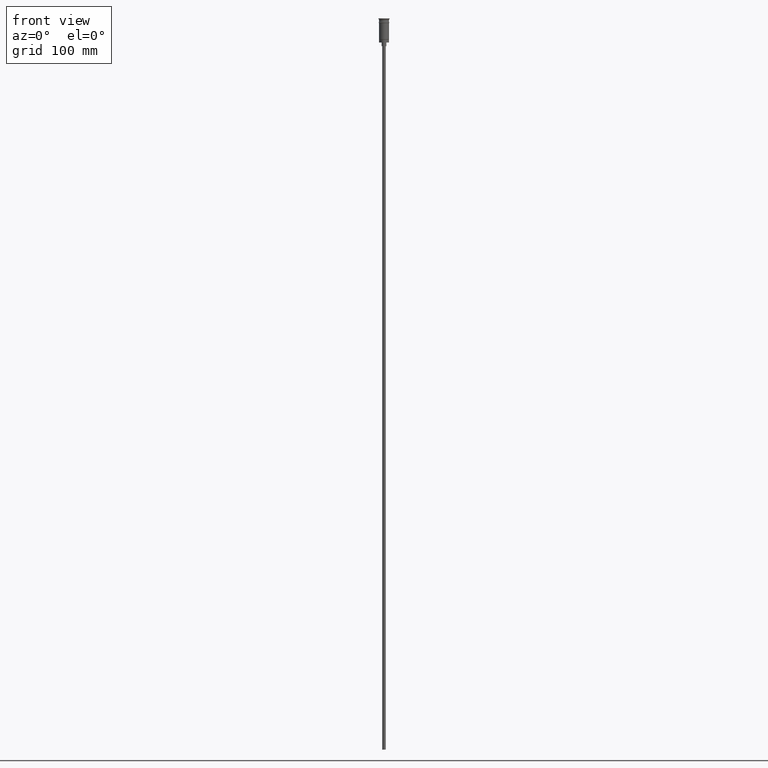
[diagram: clean part render]
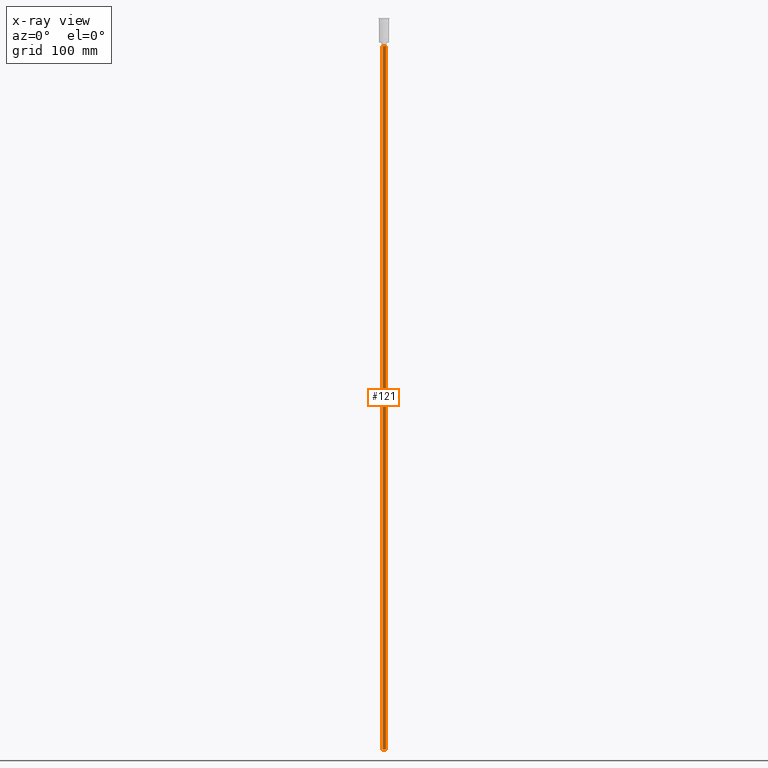
[diagram: x-ray — body ghosted, one internal face saturated and labeled with its STEP entity id]
A machine part, front view, then the same camera in x-ray: the body is ghosted and one INTERNAL B-rep face — a face not visible from any outside direction — is saturated and labeled: STEP entity #121.
In plain terms, the highlighted cylindrical surface (edge-blend (fillet) strip) has radius 1.5 mm, axis along (-0, -0, 1).
Its self-contained STEP definition (entity closure, byte-faithful):
#13 = VECTOR ( 'NONE', #239, 1000.000000000000000 ) ;
#91 = DIRECTION ( 'NONE',  ( 0.000000000000000000, 0.000000000000000000, -1.000000000000000000 ) ) ;
#121 = ADVANCED_FACE ( 'NONE', ( #1276 ), #1354, .T. ) ;
#149 = VERTEX_POINT ( 'NONE', #1312 ) ;
#195 = AXIS2_PLACEMENT_3D ( 'NONE', #226, #1332, #326 ) ;
#224 = DIRECTION ( 'NONE',  ( 0.000000000000000000, 0.000000000000000000, -1.000000000000000000 ) ) ;
#226 = CARTESIAN_POINT ( 'NONE',  ( 0.000000000000000000, 0.000000000000000000, -620.4999999999998863 ) ) ;
#239 = DIRECTION ( 'NONE',  ( -0.000000000000000000, -0.000000000000000000, 1.000000000000000000 ) ) ;
#248 = CIRCLE ( 'NONE', #1202, 1.500000000000000222 ) ;
#278 = EDGE_CURVE ( 'NONE', #462, #922, #248, .T. ) ;
#285 = EDGE_CURVE ( 'NONE', #462, #149, #335, .T. ) ;
#326 = DIRECTION ( 'NONE',  ( 1.000000000000000000, 0.000000000000000000, 0.000000000000000000 ) ) ;
#335 = LINE ( 'NONE', #957, #13 ) ;
#399 = CARTESIAN_POINT ( 'NONE',  ( 1.500000000000000222, 0.000000000000000000, -23.49999999999999645 ) ) ;
#458 = LINE ( 'NONE', #841, #903 ) ;
#462 = VERTEX_POINT ( 'NONE', #592 ) ;
#487 = DIRECTION ( 'NONE',  ( -0.000000000000000000, -0.000000000000000000, 1.000000000000000000 ) ) ;
#592 = CARTESIAN_POINT ( 'NONE',  ( -1.500000000000000222, 1.836970198721030181E-16, -620.4999999999998863 ) ) ;
#601 = EDGE_CURVE ( 'NONE', #149, #1393, #1154, .T. ) ;
#651 = DIRECTION ( 'NONE',  ( -1.000000000000000000, 0.000000000000000000, 0.000000000000000000 ) ) ;
#746 = ORIENTED_EDGE ( 'NONE', *, *, #285, .T. ) ;
#841 = CARTESIAN_POINT ( 'NONE',  ( 1.500000000000000222, 0.000000000000000000, -620.4999999999998863 ) ) ;
#879 = EDGE_CURVE ( 'NONE', #922, #1393, #458, .T. ) ;
#903 = VECTOR ( 'NONE', #487, 1000.000000000000000 ) ;
#922 = VERTEX_POINT ( 'NONE', #961 ) ;
#957 = CARTESIAN_POINT ( 'NONE',  ( -1.500000000000000222, 1.836970198721030181E-16, -620.4999999999998863 ) ) ;
#961 = CARTESIAN_POINT ( 'NONE',  ( 1.500000000000000222, 0.000000000000000000, -620.4999999999998863 ) ) ;
#1060 = ORIENTED_EDGE ( 'NONE', *, *, #601, .T. ) ;
#1154 = CIRCLE ( 'NONE', #1528, 1.500000000000000222 ) ;
#1161 = ORIENTED_EDGE ( 'NONE', *, *, #278, .F. ) ;
#1202 = AXIS2_PLACEMENT_3D ( 'NONE', #1204, #91, #1355 ) ;
#1204 = CARTESIAN_POINT ( 'NONE',  ( 0.000000000000000000, 0.000000000000000000, -620.4999999999998863 ) ) ;
#1215 = ORIENTED_EDGE ( 'NONE', *, *, #879, .F. ) ;
#1276 = FACE_OUTER_BOUND ( 'NONE', #1287, .T. ) ;
#1287 = EDGE_LOOP ( 'NONE', ( #1161, #746, #1060, #1215 ) ) ;
#1312 = CARTESIAN_POINT ( 'NONE',  ( -1.500000000000000222, 1.836970198721030181E-16, -23.49999999999999645 ) ) ;
#1332 = DIRECTION ( 'NONE',  ( -0.000000000000000000, -0.000000000000000000, 1.000000000000000000 ) ) ;
#1354 = CYLINDRICAL_SURFACE ( 'NONE', #195, 1.500000000000000222 ) ;
#1355 = DIRECTION ( 'NONE',  ( -1.000000000000000000, 0.000000000000000000, 0.000000000000000000 ) ) ;
#1393 = VERTEX_POINT ( 'NONE', #399 ) ;
#1528 = AXIS2_PLACEMENT_3D ( 'NONE', #1593, #224, #651 ) ;
#1593 = CARTESIAN_POINT ( 'NONE',  ( 0.000000000000000000, 0.000000000000000000, -23.49999999999999645 ) ) ;